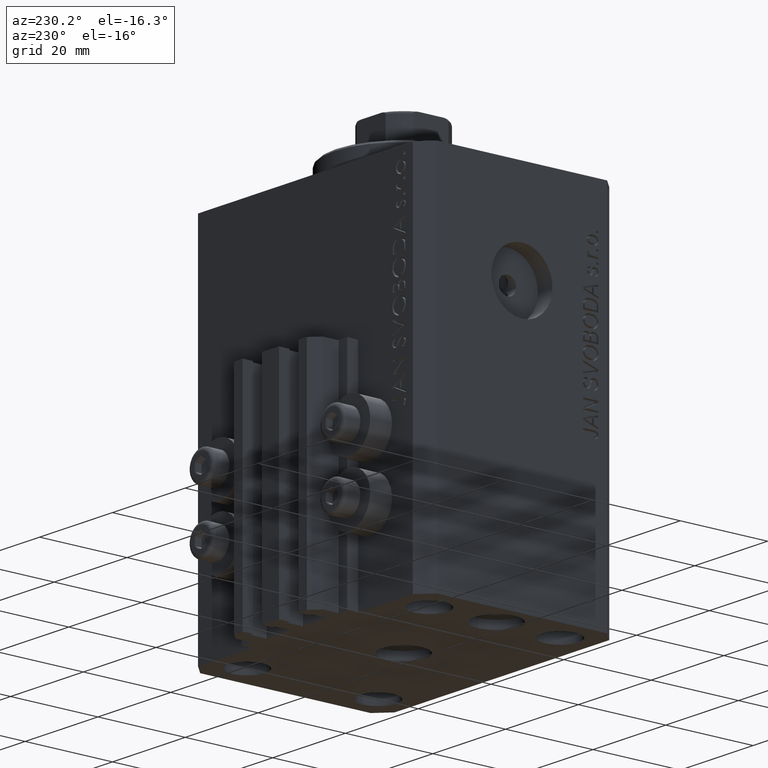
[diagram: clean part render]
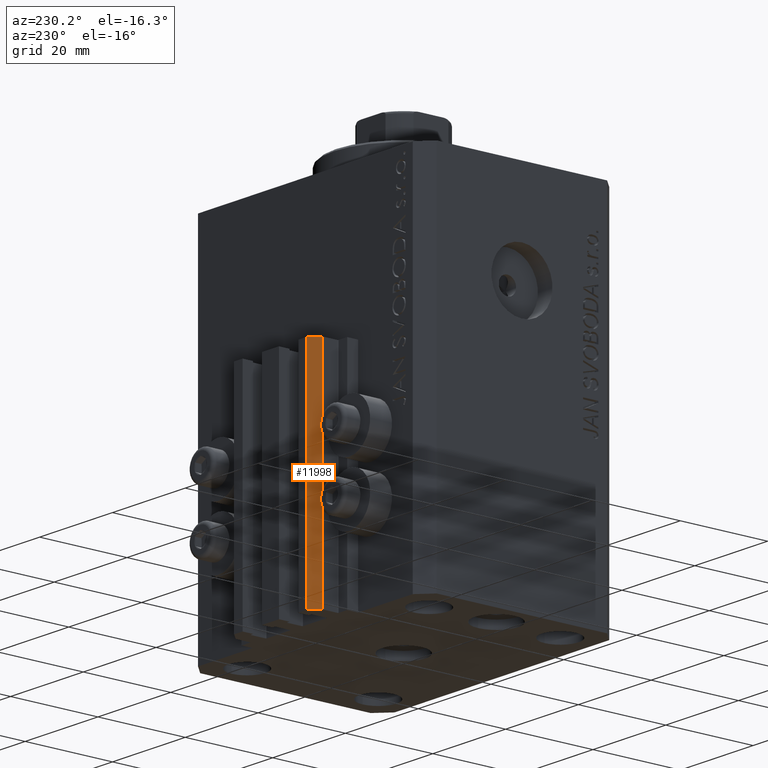
[diagram: same view with one face highlighted and labeled with its STEP entity id]
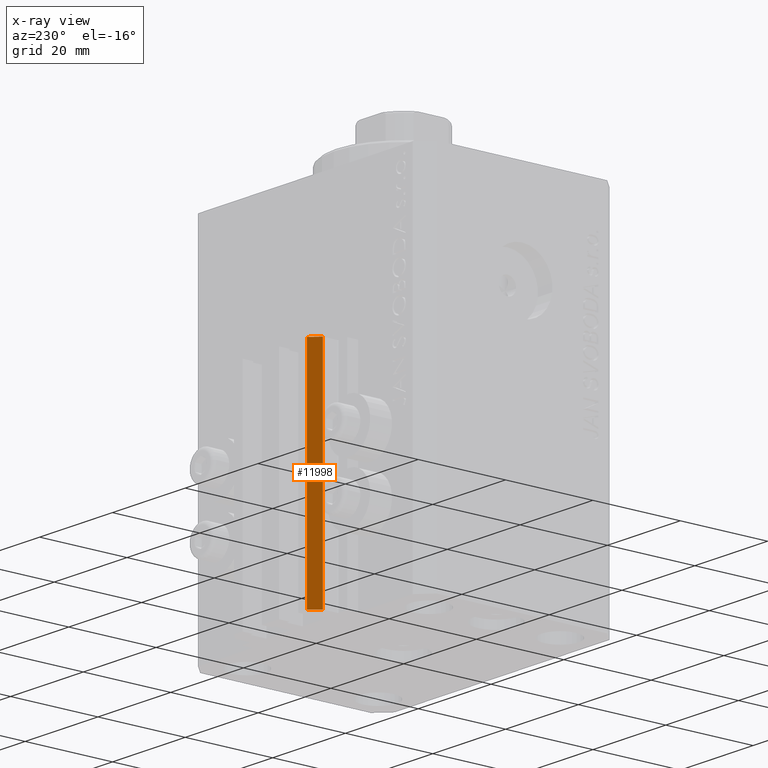
[diagram: x-ray of the same camera — body ghosted, the highlighted face saturated]
A machine part, auxiliary view. The second image highlights one B-rep face of the part: STEP entity #11998.
The next image is the same camera in x-ray: the body ghosted, the highlighted face saturated — about 0% of this face is hidden behind the body in this view.
In plain terms, the highlighted planar face has unit normal (-0.7071, 0.7071, 0).
Its self-contained STEP definition (entity closure, byte-faithful):
#767 = DIRECTION ( 'NONE',  ( 0.000000000000000000, 0.000000000000000000, 1.000000000000000000 ) ) ;
#4173 = ORIENTED_EDGE ( 'NONE', *, *, #25431, .T. ) ;
#6002 = ORIENTED_EDGE ( 'NONE', *, *, #19585, .F. ) ;
#6354 = VERTEX_POINT ( 'NONE', #37225 ) ;
#7070 = CARTESIAN_POINT ( 'NONE',  ( -10.00000000000000000, 30.49999999999948841, -83.00000000000000000 ) ) ;
#7195 = CARTESIAN_POINT ( 'NONE',  ( -10.00000000000000000, 30.49999999999948841, -83.00000000000000000 ) ) ;
#7625 = CARTESIAN_POINT ( 'NONE',  ( -10.00000000000000000, 30.49999999999948841, -83.00000000000000000 ) ) ;
#8423 = VECTOR ( 'NONE', #767, 1000.000000000000000 ) ;
#10739 = DIRECTION ( 'NONE',  ( -0.7071067811865472397, -0.7071067811865479058, 0.000000000000000000 ) ) ;
#11998 = ADVANCED_FACE ( 'NONE', ( #47227 ), #43627, .T. ) ;
#13690 = AXIS2_PLACEMENT_3D ( 'NONE', #7625, #40031, #10739 ) ;
#14946 = VERTEX_POINT ( 'NONE', #46624 ) ;
#15513 = ORIENTED_EDGE ( 'NONE', *, *, #46935, .T. ) ;
#18243 = ORIENTED_EDGE ( 'NONE', *, *, #34002, .F. ) ;
#18679 = DIRECTION ( 'NONE',  ( -0.7071067811865472397, -0.7071067811865479058, 0.000000000000000000 ) ) ;
#19149 = CARTESIAN_POINT ( 'NONE',  ( -10.00000000000000000, 30.49999999999948841, -33.00000000000000000 ) ) ;
#19585 = EDGE_CURVE ( 'NONE', #44712, #6354, #33560, .T. ) ;
#21683 = DIRECTION ( 'NONE',  ( 0.000000000000000000, 0.000000000000000000, 1.000000000000000000 ) ) ;
#23086 = LINE ( 'NONE', #37740, #8423 ) ;
#25320 = CARTESIAN_POINT ( 'NONE',  ( -10.00000000000000000, 30.49999999999948841, -33.00000000000000000 ) ) ;
#25356 = VECTOR ( 'NONE', #44596, 999.9999999999998863 ) ;
#25431 = EDGE_CURVE ( 'NONE', #14946, #34738, #32629, .T. ) ;
#31764 = EDGE_LOOP ( 'NONE', ( #6002, #18243, #4173, #15513 ) ) ;
#32629 = LINE ( 'NONE', #7195, #44672 ) ;
#33560 = LINE ( 'NONE', #19149, #25356 ) ;
#34002 = EDGE_CURVE ( 'NONE', #14946, #44712, #37056, .T. ) ;
#34738 = VERTEX_POINT ( 'NONE', #43664 ) ;
#37056 = LINE ( 'NONE', #7070, #39470 ) ;
#37225 = CARTESIAN_POINT ( 'NONE',  ( -12.00000000000000000, 28.49999999999948841, -33.00000000000000000 ) ) ;
#37740 = CARTESIAN_POINT ( 'NONE',  ( -12.00000000000000000, 28.49999999999948841, -83.00000000000000000 ) ) ;
#39470 = VECTOR ( 'NONE', #21683, 1000.000000000000000 ) ;
#40031 = DIRECTION ( 'NONE',  ( -0.7071067811865479058, 0.7071067811865472397, 0.000000000000000000 ) ) ;
#43627 = PLANE ( 'NONE',  #13690 ) ;
#43664 = CARTESIAN_POINT ( 'NONE',  ( -12.00000000000000000, 28.49999999999948841, -83.00000000000000000 ) ) ;
#44596 = DIRECTION ( 'NONE',  ( -0.7071067811865472397, -0.7071067811865479058, 0.000000000000000000 ) ) ;
#44672 = VECTOR ( 'NONE', #18679, 999.9999999999998863 ) ;
#44712 = VERTEX_POINT ( 'NONE', #25320 ) ;
#46624 = CARTESIAN_POINT ( 'NONE',  ( -10.00000000000000000, 30.49999999999948841, -83.00000000000000000 ) ) ;
#46935 = EDGE_CURVE ( 'NONE', #34738, #6354, #23086, .T. ) ;
#47227 = FACE_OUTER_BOUND ( 'NONE', #31764, .T. ) ;